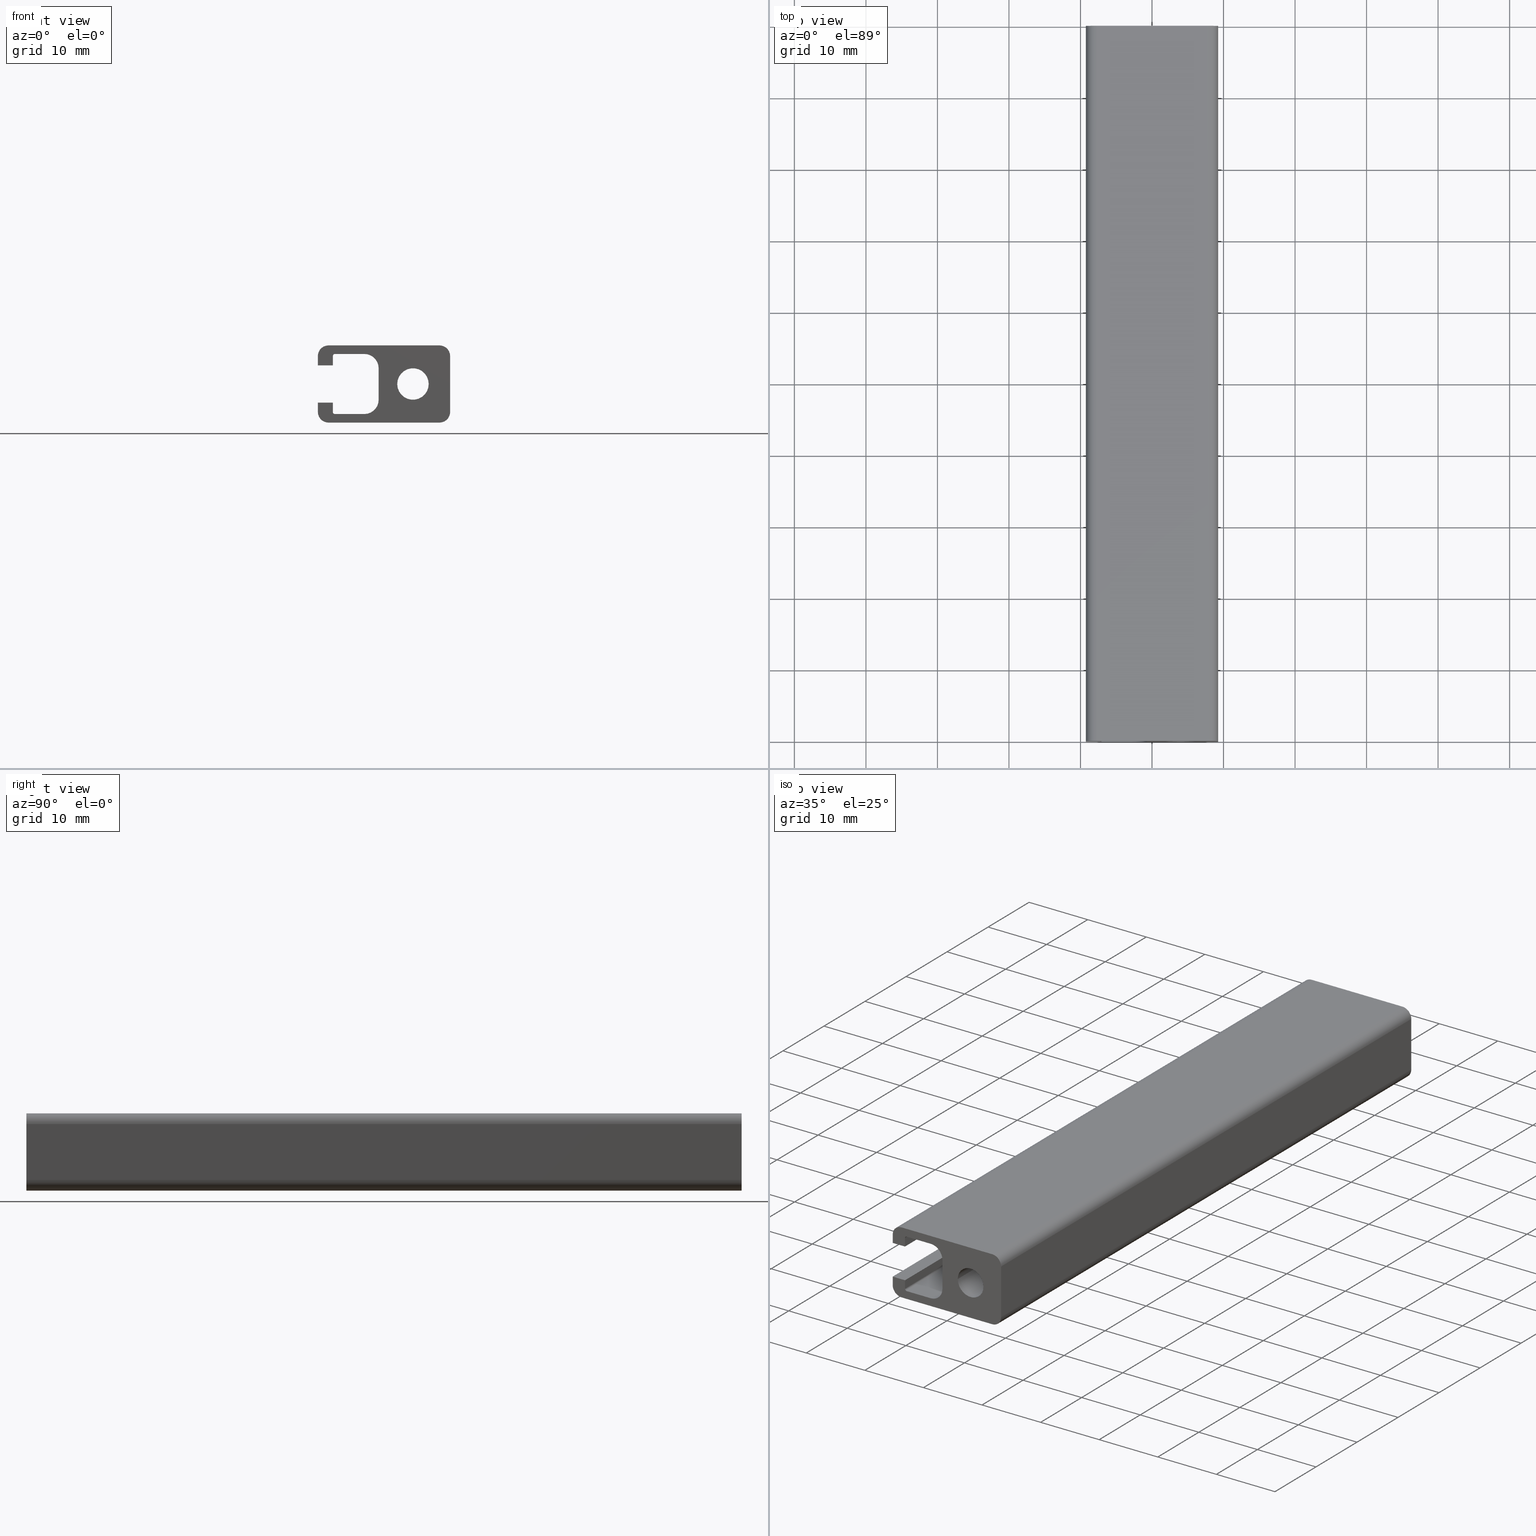
[diagram: canonical four-view strip — front | top / right | iso, engineering-drawing reading convention]
A machine part, canonical four-view strip (front | top / right | iso — engineering-drawing reading convention). The complete STEP part file that produces these views, byte-faithful:
ISO-10303-21;
HEADER;
/* Generated by software containing ST-Developer
 * from STEP Tools, Inc. (www.steptools.com) 
 */

FILE_DESCRIPTION(
/* description */ (''),
/* implementation_level */ '2;1');

FILE_NAME(
/* name */ 
'Q:\\Catalogo\\1_Profili Dierre\\Per Download Web\\Serie 45\\BPRDD0000
487.stp',
/* time_stamp */ '2017-07-13T12:25:35+02:00',
/* author */ ('fzagni'),
/* organization */ (''),
/* preprocessor_version */ 'ST-DEVELOPER v16.1',
/* originating_system */ 'Autodesk Inventor 2016',
/* authorisation */ '');

FILE_SCHEMA (('AUTOMOTIVE_DESIGN { 1 0 10303 214 3 1 1 }'));
ENDSEC;

DATA;
#10=MECHANICAL_DESIGN_GEOMETRIC_PRESENTATION_REPRESENTATION('',(#13),#749);
#11=SHAPE_REPRESENTATION_RELATIONSHIP('SRR','None',#758,#12);
#12=ADVANCED_BREP_SHAPE_REPRESENTATION('',(#14),#748);
#13=STYLED_ITEM('',(#767),#14);
#14=MANIFOLD_SOLID_BREP('Solido1',#447);
#15=LINE('',#627,#59);
#16=LINE('',#629,#60);
#17=LINE('',#631,#61);
#18=LINE('',#632,#62);
#19=LINE('',#638,#63);
#20=LINE('',#641,#64);
#21=LINE('',#643,#65);
#22=LINE('',#644,#66);
#23=LINE('',#650,#67);
#24=LINE('',#653,#68);
#25=LINE('',#655,#69);
#26=LINE('',#656,#70);
#27=LINE('',#662,#71);
#28=LINE('',#665,#72);
#29=LINE('',#667,#73);
#30=LINE('',#668,#74);
#31=LINE('',#671,#75);
#32=LINE('',#673,#76);
#33=LINE('',#674,#77);
#34=LINE('',#677,#78);
#35=LINE('',#679,#79);
#36=LINE('',#680,#80);
#37=LINE('',#686,#81);
#38=LINE('',#689,#82);
#39=LINE('',#691,#83);
#40=LINE('',#692,#84);
#41=LINE('',#698,#85);
#42=LINE('',#701,#86);
#43=LINE('',#703,#87);
#44=LINE('',#704,#88);
#45=LINE('',#710,#89);
#46=LINE('',#713,#90);
#47=LINE('',#715,#91);
#48=LINE('',#716,#92);
#49=LINE('',#722,#93);
#50=LINE('',#725,#94);
#51=LINE('',#727,#95);
#52=LINE('',#728,#96);
#53=LINE('',#731,#97);
#54=LINE('',#733,#98);
#55=LINE('',#734,#99);
#56=LINE('',#737,#100);
#57=LINE('',#739,#101);
#58=LINE('',#740,#102);
#59=VECTOR('',#500,4.09999999999968);
#60=VECTOR('',#501,100.);
#61=VECTOR('',#502,4.09999999999968);
#62=VECTOR('',#503,100.);
#63=VECTOR('',#510,100.);
#64=VECTOR('',#513,4.40000000000111);
#65=VECTOR('',#514,4.40000000000111);
#66=VECTOR('',#515,100.);
#67=VECTOR('',#522,100.);
#68=VECTOR('',#525,4.09999999999968);
#69=VECTOR('',#526,4.09999999999968);
#70=VECTOR('',#527,100.);
#71=VECTOR('',#534,100.);
#72=VECTOR('',#537,1.29999999999825);
#73=VECTOR('',#538,1.29999999999825);
#74=VECTOR('',#539,100.);
#75=VECTOR('',#542,2.10000000000037);
#76=VECTOR('',#543,2.10000000000037);
#77=VECTOR('',#544,100.);
#78=VECTOR('',#547,1.29999999999824);
#79=VECTOR('',#548,1.29999999999824);
#80=VECTOR('',#549,100.);
#81=VECTOR('',#556,100.);
#82=VECTOR('',#559,15.5000000000005);
#83=VECTOR('',#560,15.5000000000005);
#84=VECTOR('',#561,100.);
#85=VECTOR('',#568,100.);
#86=VECTOR('',#571,7.79999999999745);
#87=VECTOR('',#572,7.79999999999745);
#88=VECTOR('',#573,100.);
#89=VECTOR('',#580,100.);
#90=VECTOR('',#583,15.5000000000004);
#91=VECTOR('',#584,15.5000000000004);
#92=VECTOR('',#585,100.);
#93=VECTOR('',#592,100.);
#94=VECTOR('',#595,1.29999999999882);
#95=VECTOR('',#596,1.29999999999882);
#96=VECTOR('',#597,100.);
#97=VECTOR('',#600,2.10000000000038);
#98=VECTOR('',#601,2.10000000000038);
#99=VECTOR('',#602,100.);
#100=VECTOR('',#605,1.29999999999882);
#101=VECTOR('',#606,1.29999999999882);
#102=VECTOR('',#607,100.);
#103=PLANE('',#452);
#104=PLANE('',#456);
#105=PLANE('',#460);
#106=PLANE('',#464);
#107=PLANE('',#465);
#108=PLANE('',#466);
#109=PLANE('',#470);
#110=PLANE('',#474);
#111=PLANE('',#478);
#112=PLANE('',#482);
#113=PLANE('',#483);
#114=PLANE('',#484);
#115=PLANE('',#488);
#116=PLANE('',#489);
#117=FACE_BOUND('',#144,.T.);
#118=FACE_BOUND('',#166,.T.);
#119=FACE_BOUND('',#168,.T.);
#120=FACE_OUTER_BOUND('',#143,.T.);
#121=FACE_OUTER_BOUND('',#145,.T.);
#122=FACE_OUTER_BOUND('',#146,.T.);
#123=FACE_OUTER_BOUND('',#147,.T.);
#124=FACE_OUTER_BOUND('',#148,.T.);
#125=FACE_OUTER_BOUND('',#149,.T.);
#126=FACE_OUTER_BOUND('',#150,.T.);
#127=FACE_OUTER_BOUND('',#151,.T.);
#128=FACE_OUTER_BOUND('',#152,.T.);
#129=FACE_OUTER_BOUND('',#153,.T.);
#130=FACE_OUTER_BOUND('',#154,.T.);
#131=FACE_OUTER_BOUND('',#155,.T.);
#132=FACE_OUTER_BOUND('',#156,.T.);
#133=FACE_OUTER_BOUND('',#157,.T.);
#134=FACE_OUTER_BOUND('',#158,.T.);
#135=FACE_OUTER_BOUND('',#159,.T.);
#136=FACE_OUTER_BOUND('',#160,.T.);
#137=FACE_OUTER_BOUND('',#161,.T.);
#138=FACE_OUTER_BOUND('',#162,.T.);
#139=FACE_OUTER_BOUND('',#163,.T.);
#140=FACE_OUTER_BOUND('',#164,.T.);
#141=FACE_OUTER_BOUND('',#165,.T.);
#142=FACE_OUTER_BOUND('',#167,.T.);
#143=EDGE_LOOP('',(#291));
#144=EDGE_LOOP('',(#292));
#145=EDGE_LOOP('',(#293,#294,#295,#296));
#146=EDGE_LOOP('',(#297,#298,#299,#300));
#147=EDGE_LOOP('',(#301,#302,#303,#304));
#148=EDGE_LOOP('',(#305,#306,#307,#308));
#149=EDGE_LOOP('',(#309,#310,#311,#312));
#150=EDGE_LOOP('',(#313,#314,#315,#316));
#151=EDGE_LOOP('',(#317,#318,#319,#320));
#152=EDGE_LOOP('',(#321,#322,#323,#324));
#153=EDGE_LOOP('',(#325,#326,#327,#328));
#154=EDGE_LOOP('',(#329,#330,#331,#332));
#155=EDGE_LOOP('',(#333,#334,#335,#336));
#156=EDGE_LOOP('',(#337,#338,#339,#340));
#157=EDGE_LOOP('',(#341,#342,#343,#344));
#158=EDGE_LOOP('',(#345,#346,#347,#348));
#159=EDGE_LOOP('',(#349,#350,#351,#352));
#160=EDGE_LOOP('',(#353,#354,#355,#356));
#161=EDGE_LOOP('',(#357,#358,#359,#360));
#162=EDGE_LOOP('',(#361,#362,#363,#364));
#163=EDGE_LOOP('',(#365,#366,#367,#368));
#164=EDGE_LOOP('',(#369,#370,#371,#372));
#165=EDGE_LOOP('',(#373,#374,#375,#376,#377,#378,#379,#380,#381,#382,#383,
#384,#385,#386,#387,#388,#389,#390,#391,#392));
#166=EDGE_LOOP('',(#393));
#167=EDGE_LOOP('',(#394,#395,#396,#397,#398,#399,#400,#401,#402,#403,#404,
#405,#406,#407,#408,#409,#410,#411,#412,#413));
#168=EDGE_LOOP('',(#414));
#169=CIRCLE('',#450,2.2);
#170=CIRCLE('',#451,2.2);
#171=CIRCLE('',#454,2.00000000000045);
#172=CIRCLE('',#455,2.00000000000045);
#173=CIRCLE('',#458,2.00000000000045);
#174=CIRCLE('',#459,2.00000000000045);
#175=CIRCLE('',#462,0.299999999999727);
#176=CIRCLE('',#463,0.299999999999727);
#177=CIRCLE('',#468,1.49999999999977);
#178=CIRCLE('',#469,1.49999999999977);
#179=CIRCLE('',#472,1.50000000000148);
#180=CIRCLE('',#473,1.50000000000148);
#181=CIRCLE('',#476,1.49999999999974);
#182=CIRCLE('',#477,1.49999999999974);
#183=CIRCLE('',#480,1.50000000000091);
#184=CIRCLE('',#481,1.50000000000091);
#185=CIRCLE('',#486,0.299999999999727);
#186=CIRCLE('',#487,0.299999999999727);
#187=VERTEX_POINT('',#620);
#188=VERTEX_POINT('',#622);
#189=VERTEX_POINT('',#625);
#190=VERTEX_POINT('',#626);
#191=VERTEX_POINT('',#628);
#192=VERTEX_POINT('',#630);
#193=VERTEX_POINT('',#634);
#194=VERTEX_POINT('',#636);
#195=VERTEX_POINT('',#640);
#196=VERTEX_POINT('',#642);
#197=VERTEX_POINT('',#646);
#198=VERTEX_POINT('',#648);
#199=VERTEX_POINT('',#652);
#200=VERTEX_POINT('',#654);
#201=VERTEX_POINT('',#658);
#202=VERTEX_POINT('',#660);
#203=VERTEX_POINT('',#664);
#204=VERTEX_POINT('',#666);
#205=VERTEX_POINT('',#670);
#206=VERTEX_POINT('',#672);
#207=VERTEX_POINT('',#676);
#208=VERTEX_POINT('',#678);
#209=VERTEX_POINT('',#682);
#210=VERTEX_POINT('',#684);
#211=VERTEX_POINT('',#688);
#212=VERTEX_POINT('',#690);
#213=VERTEX_POINT('',#694);
#214=VERTEX_POINT('',#696);
#215=VERTEX_POINT('',#700);
#216=VERTEX_POINT('',#702);
#217=VERTEX_POINT('',#706);
#218=VERTEX_POINT('',#708);
#219=VERTEX_POINT('',#712);
#220=VERTEX_POINT('',#714);
#221=VERTEX_POINT('',#718);
#222=VERTEX_POINT('',#720);
#223=VERTEX_POINT('',#724);
#224=VERTEX_POINT('',#726);
#225=VERTEX_POINT('',#730);
#226=VERTEX_POINT('',#732);
#227=VERTEX_POINT('',#736);
#228=VERTEX_POINT('',#738);
#229=EDGE_CURVE('',#187,#187,#169,.T.);
#230=EDGE_CURVE('',#188,#188,#170,.T.);
#231=EDGE_CURVE('',#189,#190,#15,.T.);
#232=EDGE_CURVE('',#189,#191,#16,.T.);
#233=EDGE_CURVE('',#192,#191,#17,.T.);
#234=EDGE_CURVE('',#190,#192,#18,.T.);
#235=EDGE_CURVE('',#190,#193,#171,.T.);
#236=EDGE_CURVE('',#194,#192,#172,.T.);
#237=EDGE_CURVE('',#193,#194,#19,.T.);
#238=EDGE_CURVE('',#193,#195,#20,.T.);
#239=EDGE_CURVE('',#196,#194,#21,.T.);
#240=EDGE_CURVE('',#195,#196,#22,.T.);
#241=EDGE_CURVE('',#195,#197,#173,.T.);
#242=EDGE_CURVE('',#198,#196,#174,.T.);
#243=EDGE_CURVE('',#197,#198,#23,.T.);
#244=EDGE_CURVE('',#197,#199,#24,.T.);
#245=EDGE_CURVE('',#200,#198,#25,.T.);
#246=EDGE_CURVE('',#199,#200,#26,.T.);
#247=EDGE_CURVE('',#199,#201,#175,.T.);
#248=EDGE_CURVE('',#202,#200,#176,.T.);
#249=EDGE_CURVE('',#201,#202,#27,.T.);
#250=EDGE_CURVE('',#201,#203,#28,.T.);
#251=EDGE_CURVE('',#204,#202,#29,.T.);
#252=EDGE_CURVE('',#203,#204,#30,.T.);
#253=EDGE_CURVE('',#203,#205,#31,.T.);
#254=EDGE_CURVE('',#206,#204,#32,.T.);
#255=EDGE_CURVE('',#205,#206,#33,.T.);
#256=EDGE_CURVE('',#205,#207,#34,.T.);
#257=EDGE_CURVE('',#208,#206,#35,.T.);
#258=EDGE_CURVE('',#207,#208,#36,.T.);
#259=EDGE_CURVE('',#207,#209,#177,.T.);
#260=EDGE_CURVE('',#210,#208,#178,.T.);
#261=EDGE_CURVE('',#209,#210,#37,.T.);
#262=EDGE_CURVE('',#209,#211,#38,.T.);
#263=EDGE_CURVE('',#212,#210,#39,.T.);
#264=EDGE_CURVE('',#211,#212,#40,.T.);
#265=EDGE_CURVE('',#211,#213,#179,.T.);
#266=EDGE_CURVE('',#214,#212,#180,.T.);
#267=EDGE_CURVE('',#213,#214,#41,.T.);
#268=EDGE_CURVE('',#213,#215,#42,.T.);
#269=EDGE_CURVE('',#216,#214,#43,.T.);
#270=EDGE_CURVE('',#215,#216,#44,.T.);
#271=EDGE_CURVE('',#215,#217,#181,.T.);
#272=EDGE_CURVE('',#218,#216,#182,.T.);
#273=EDGE_CURVE('',#217,#218,#45,.T.);
#274=EDGE_CURVE('',#217,#219,#46,.T.);
#275=EDGE_CURVE('',#220,#218,#47,.T.);
#276=EDGE_CURVE('',#219,#220,#48,.T.);
#277=EDGE_CURVE('',#219,#221,#183,.T.);
#278=EDGE_CURVE('',#222,#220,#184,.T.);
#279=EDGE_CURVE('',#221,#222,#49,.T.);
#280=EDGE_CURVE('',#221,#223,#50,.T.);
#281=EDGE_CURVE('',#224,#222,#51,.T.);
#282=EDGE_CURVE('',#223,#224,#52,.T.);
#283=EDGE_CURVE('',#223,#225,#53,.T.);
#284=EDGE_CURVE('',#226,#224,#54,.T.);
#285=EDGE_CURVE('',#225,#226,#55,.T.);
#286=EDGE_CURVE('',#225,#227,#56,.T.);
#287=EDGE_CURVE('',#228,#226,#57,.T.);
#288=EDGE_CURVE('',#227,#228,#58,.T.);
#289=EDGE_CURVE('',#227,#189,#185,.T.);
#290=EDGE_CURVE('',#191,#228,#186,.T.);
#291=ORIENTED_EDGE('',*,*,#229,.F.);
#292=ORIENTED_EDGE('',*,*,#230,.F.);
#293=ORIENTED_EDGE('',*,*,#231,.F.);
#294=ORIENTED_EDGE('',*,*,#232,.T.);
#295=ORIENTED_EDGE('',*,*,#233,.F.);
#296=ORIENTED_EDGE('',*,*,#234,.F.);
#297=ORIENTED_EDGE('',*,*,#235,.F.);
#298=ORIENTED_EDGE('',*,*,#234,.T.);
#299=ORIENTED_EDGE('',*,*,#236,.F.);
#300=ORIENTED_EDGE('',*,*,#237,.F.);
#301=ORIENTED_EDGE('',*,*,#238,.F.);
#302=ORIENTED_EDGE('',*,*,#237,.T.);
#303=ORIENTED_EDGE('',*,*,#239,.F.);
#304=ORIENTED_EDGE('',*,*,#240,.F.);
#305=ORIENTED_EDGE('',*,*,#241,.F.);
#306=ORIENTED_EDGE('',*,*,#240,.T.);
#307=ORIENTED_EDGE('',*,*,#242,.F.);
#308=ORIENTED_EDGE('',*,*,#243,.F.);
#309=ORIENTED_EDGE('',*,*,#244,.F.);
#310=ORIENTED_EDGE('',*,*,#243,.T.);
#311=ORIENTED_EDGE('',*,*,#245,.F.);
#312=ORIENTED_EDGE('',*,*,#246,.F.);
#313=ORIENTED_EDGE('',*,*,#247,.F.);
#314=ORIENTED_EDGE('',*,*,#246,.T.);
#315=ORIENTED_EDGE('',*,*,#248,.F.);
#316=ORIENTED_EDGE('',*,*,#249,.F.);
#317=ORIENTED_EDGE('',*,*,#250,.F.);
#318=ORIENTED_EDGE('',*,*,#249,.T.);
#319=ORIENTED_EDGE('',*,*,#251,.F.);
#320=ORIENTED_EDGE('',*,*,#252,.F.);
#321=ORIENTED_EDGE('',*,*,#253,.F.);
#322=ORIENTED_EDGE('',*,*,#252,.T.);
#323=ORIENTED_EDGE('',*,*,#254,.F.);
#324=ORIENTED_EDGE('',*,*,#255,.F.);
#325=ORIENTED_EDGE('',*,*,#256,.F.);
#326=ORIENTED_EDGE('',*,*,#255,.T.);
#327=ORIENTED_EDGE('',*,*,#257,.F.);
#328=ORIENTED_EDGE('',*,*,#258,.F.);
#329=ORIENTED_EDGE('',*,*,#259,.F.);
#330=ORIENTED_EDGE('',*,*,#258,.T.);
#331=ORIENTED_EDGE('',*,*,#260,.F.);
#332=ORIENTED_EDGE('',*,*,#261,.F.);
#333=ORIENTED_EDGE('',*,*,#262,.F.);
#334=ORIENTED_EDGE('',*,*,#261,.T.);
#335=ORIENTED_EDGE('',*,*,#263,.F.);
#336=ORIENTED_EDGE('',*,*,#264,.F.);
#337=ORIENTED_EDGE('',*,*,#265,.F.);
#338=ORIENTED_EDGE('',*,*,#264,.T.);
#339=ORIENTED_EDGE('',*,*,#266,.F.);
#340=ORIENTED_EDGE('',*,*,#267,.F.);
#341=ORIENTED_EDGE('',*,*,#268,.F.);
#342=ORIENTED_EDGE('',*,*,#267,.T.);
#343=ORIENTED_EDGE('',*,*,#269,.F.);
#344=ORIENTED_EDGE('',*,*,#270,.F.);
#345=ORIENTED_EDGE('',*,*,#271,.F.);
#346=ORIENTED_EDGE('',*,*,#270,.T.);
#347=ORIENTED_EDGE('',*,*,#272,.F.);
#348=ORIENTED_EDGE('',*,*,#273,.F.);
#349=ORIENTED_EDGE('',*,*,#274,.F.);
#350=ORIENTED_EDGE('',*,*,#273,.T.);
#351=ORIENTED_EDGE('',*,*,#275,.F.);
#352=ORIENTED_EDGE('',*,*,#276,.F.);
#353=ORIENTED_EDGE('',*,*,#277,.F.);
#354=ORIENTED_EDGE('',*,*,#276,.T.);
#355=ORIENTED_EDGE('',*,*,#278,.F.);
#356=ORIENTED_EDGE('',*,*,#279,.F.);
#357=ORIENTED_EDGE('',*,*,#280,.F.);
#358=ORIENTED_EDGE('',*,*,#279,.T.);
#359=ORIENTED_EDGE('',*,*,#281,.F.);
#360=ORIENTED_EDGE('',*,*,#282,.F.);
#361=ORIENTED_EDGE('',*,*,#283,.F.);
#362=ORIENTED_EDGE('',*,*,#282,.T.);
#363=ORIENTED_EDGE('',*,*,#284,.F.);
#364=ORIENTED_EDGE('',*,*,#285,.F.);
#365=ORIENTED_EDGE('',*,*,#286,.F.);
#366=ORIENTED_EDGE('',*,*,#285,.T.);
#367=ORIENTED_EDGE('',*,*,#287,.F.);
#368=ORIENTED_EDGE('',*,*,#288,.F.);
#369=ORIENTED_EDGE('',*,*,#289,.F.);
#370=ORIENTED_EDGE('',*,*,#288,.T.);
#371=ORIENTED_EDGE('',*,*,#290,.F.);
#372=ORIENTED_EDGE('',*,*,#232,.F.);
#373=ORIENTED_EDGE('',*,*,#289,.T.);
#374=ORIENTED_EDGE('',*,*,#231,.T.);
#375=ORIENTED_EDGE('',*,*,#235,.T.);
#376=ORIENTED_EDGE('',*,*,#238,.T.);
#377=ORIENTED_EDGE('',*,*,#241,.T.);
#378=ORIENTED_EDGE('',*,*,#244,.T.);
#379=ORIENTED_EDGE('',*,*,#247,.T.);
#380=ORIENTED_EDGE('',*,*,#250,.T.);
#381=ORIENTED_EDGE('',*,*,#253,.T.);
#382=ORIENTED_EDGE('',*,*,#256,.T.);
#383=ORIENTED_EDGE('',*,*,#259,.T.);
#384=ORIENTED_EDGE('',*,*,#262,.T.);
#385=ORIENTED_EDGE('',*,*,#265,.T.);
#386=ORIENTED_EDGE('',*,*,#268,.T.);
#387=ORIENTED_EDGE('',*,*,#271,.T.);
#388=ORIENTED_EDGE('',*,*,#274,.T.);
#389=ORIENTED_EDGE('',*,*,#277,.T.);
#390=ORIENTED_EDGE('',*,*,#280,.T.);
#391=ORIENTED_EDGE('',*,*,#283,.T.);
#392=ORIENTED_EDGE('',*,*,#286,.T.);
#393=ORIENTED_EDGE('',*,*,#230,.T.);
#394=ORIENTED_EDGE('',*,*,#290,.T.);
#395=ORIENTED_EDGE('',*,*,#287,.T.);
#396=ORIENTED_EDGE('',*,*,#284,.T.);
#397=ORIENTED_EDGE('',*,*,#281,.T.);
#398=ORIENTED_EDGE('',*,*,#278,.T.);
#399=ORIENTED_EDGE('',*,*,#275,.T.);
#400=ORIENTED_EDGE('',*,*,#272,.T.);
#401=ORIENTED_EDGE('',*,*,#269,.T.);
#402=ORIENTED_EDGE('',*,*,#266,.T.);
#403=ORIENTED_EDGE('',*,*,#263,.T.);
#404=ORIENTED_EDGE('',*,*,#260,.T.);
#405=ORIENTED_EDGE('',*,*,#257,.T.);
#406=ORIENTED_EDGE('',*,*,#254,.T.);
#407=ORIENTED_EDGE('',*,*,#251,.T.);
#408=ORIENTED_EDGE('',*,*,#248,.T.);
#409=ORIENTED_EDGE('',*,*,#245,.T.);
#410=ORIENTED_EDGE('',*,*,#242,.T.);
#411=ORIENTED_EDGE('',*,*,#239,.T.);
#412=ORIENTED_EDGE('',*,*,#236,.T.);
#413=ORIENTED_EDGE('',*,*,#233,.T.);
#414=ORIENTED_EDGE('',*,*,#229,.T.);
#415=CYLINDRICAL_SURFACE('',#449,2.2);
#416=CYLINDRICAL_SURFACE('',#453,2.00000000000045);
#417=CYLINDRICAL_SURFACE('',#457,2.00000000000045);
#418=CYLINDRICAL_SURFACE('',#461,0.299999999999727);
#419=CYLINDRICAL_SURFACE('',#467,1.49999999999977);
#420=CYLINDRICAL_SURFACE('',#471,1.50000000000148);
#421=CYLINDRICAL_SURFACE('',#475,1.49999999999974);
#422=CYLINDRICAL_SURFACE('',#479,1.50000000000091);
#423=CYLINDRICAL_SURFACE('',#485,0.299999999999727);
#424=ADVANCED_FACE('',(#120,#117),#415,.F.);
#425=ADVANCED_FACE('',(#121),#103,.T.);
#426=ADVANCED_FACE('',(#122),#416,.F.);
#427=ADVANCED_FACE('',(#123),#104,.T.);
#428=ADVANCED_FACE('',(#124),#417,.F.);
#429=ADVANCED_FACE('',(#125),#105,.T.);
#430=ADVANCED_FACE('',(#126),#418,.F.);
#431=ADVANCED_FACE('',(#127),#106,.T.);
#432=ADVANCED_FACE('',(#128),#107,.T.);
#433=ADVANCED_FACE('',(#129),#108,.T.);
#434=ADVANCED_FACE('',(#130),#419,.T.);
#435=ADVANCED_FACE('',(#131),#109,.T.);
#436=ADVANCED_FACE('',(#132),#420,.T.);
#437=ADVANCED_FACE('',(#133),#110,.T.);
#438=ADVANCED_FACE('',(#134),#421,.T.);
#439=ADVANCED_FACE('',(#135),#111,.T.);
#440=ADVANCED_FACE('',(#136),#422,.T.);
#441=ADVANCED_FACE('',(#137),#112,.T.);
#442=ADVANCED_FACE('',(#138),#113,.T.);
#443=ADVANCED_FACE('',(#139),#114,.T.);
#444=ADVANCED_FACE('',(#140),#423,.F.);
#445=ADVANCED_FACE('',(#141,#118),#115,.F.);
#446=ADVANCED_FACE('',(#142,#119),#116,.T.);
#447=CLOSED_SHELL('',(#424,#425,#426,#427,#428,#429,#430,#431,#432,#433,
#434,#435,#436,#437,#438,#439,#440,#441,#442,#443,#444,#445,#446));
#448=AXIS2_PLACEMENT_3D('placement',#618,#490,#491);
#449=AXIS2_PLACEMENT_3D('',#619,#492,#493);
#450=AXIS2_PLACEMENT_3D('',#621,#494,#495);
#451=AXIS2_PLACEMENT_3D('',#623,#496,#497);
#452=AXIS2_PLACEMENT_3D('',#624,#498,#499);
#453=AXIS2_PLACEMENT_3D('',#633,#504,#505);
#454=AXIS2_PLACEMENT_3D('',#635,#506,#507);
#455=AXIS2_PLACEMENT_3D('',#637,#508,#509);
#456=AXIS2_PLACEMENT_3D('',#639,#511,#512);
#457=AXIS2_PLACEMENT_3D('',#645,#516,#517);
#458=AXIS2_PLACEMENT_3D('',#647,#518,#519);
#459=AXIS2_PLACEMENT_3D('',#649,#520,#521);
#460=AXIS2_PLACEMENT_3D('',#651,#523,#524);
#461=AXIS2_PLACEMENT_3D('',#657,#528,#529);
#462=AXIS2_PLACEMENT_3D('',#659,#530,#531);
#463=AXIS2_PLACEMENT_3D('',#661,#532,#533);
#464=AXIS2_PLACEMENT_3D('',#663,#535,#536);
#465=AXIS2_PLACEMENT_3D('',#669,#540,#541);
#466=AXIS2_PLACEMENT_3D('',#675,#545,#546);
#467=AXIS2_PLACEMENT_3D('',#681,#550,#551);
#468=AXIS2_PLACEMENT_3D('',#683,#552,#553);
#469=AXIS2_PLACEMENT_3D('',#685,#554,#555);
#470=AXIS2_PLACEMENT_3D('',#687,#557,#558);
#471=AXIS2_PLACEMENT_3D('',#693,#562,#563);
#472=AXIS2_PLACEMENT_3D('',#695,#564,#565);
#473=AXIS2_PLACEMENT_3D('',#697,#566,#567);
#474=AXIS2_PLACEMENT_3D('',#699,#569,#570);
#475=AXIS2_PLACEMENT_3D('',#705,#574,#575);
#476=AXIS2_PLACEMENT_3D('',#707,#576,#577);
#477=AXIS2_PLACEMENT_3D('',#709,#578,#579);
#478=AXIS2_PLACEMENT_3D('',#711,#581,#582);
#479=AXIS2_PLACEMENT_3D('',#717,#586,#587);
#480=AXIS2_PLACEMENT_3D('',#719,#588,#589);
#481=AXIS2_PLACEMENT_3D('',#721,#590,#591);
#482=AXIS2_PLACEMENT_3D('',#723,#593,#594);
#483=AXIS2_PLACEMENT_3D('',#729,#598,#599);
#484=AXIS2_PLACEMENT_3D('',#735,#603,#604);
#485=AXIS2_PLACEMENT_3D('',#741,#608,#609);
#486=AXIS2_PLACEMENT_3D('',#742,#610,#611);
#487=AXIS2_PLACEMENT_3D('',#743,#612,#613);
#488=AXIS2_PLACEMENT_3D('',#744,#614,#615);
#489=AXIS2_PLACEMENT_3D('',#745,#616,#617);
#490=DIRECTION('axis',(0.,0.,1.));
#491=DIRECTION('refdir',(1.,0.,0.));
#492=DIRECTION('center_axis',(0.,1.,0.));
#493=DIRECTION('ref_axis',(1.,0.,0.));
#494=DIRECTION('center_axis',(0.,-1.,0.));
#495=DIRECTION('ref_axis',(1.,0.,0.));
#496=DIRECTION('center_axis',(0.,1.,0.));
#497=DIRECTION('ref_axis',(1.,0.,0.));
#498=DIRECTION('center_axis',(5.54569940105487E-13,0.,-1.));
#499=DIRECTION('ref_axis',(-1.,0.,-5.54578605260758E-13));
#500=DIRECTION('',(1.,0.,5.54569940105487E-13));
#501=DIRECTION('',(0.,1.,0.));
#502=DIRECTION('',(-1.,0.,-5.54569940105487E-13));
#503=DIRECTION('',(0.,1.,0.));
#504=DIRECTION('center_axis',(0.,1.,0.));
#505=DIRECTION('ref_axis',(0.,0.,1.));
#506=DIRECTION('center_axis',(0.,1.,0.));
#507=DIRECTION('ref_axis',(0.,0.,1.));
#508=DIRECTION('center_axis',(0.,-1.,0.));
#509=DIRECTION('ref_axis',(0.,0.,1.));
#510=DIRECTION('',(0.,1.,0.));
#511=DIRECTION('center_axis',(-1.,0.,1.00929365874989E-15));
#512=DIRECTION('ref_axis',(1.01030295240889E-15,0.,1.));
#513=DIRECTION('',(-1.00929365874989E-15,0.,-1.));
#514=DIRECTION('',(1.00929365874989E-15,0.,1.));
#515=DIRECTION('',(0.,1.,0.));
#516=DIRECTION('center_axis',(0.,1.,0.));
#517=DIRECTION('ref_axis',(1.,0.,0.));
#518=DIRECTION('center_axis',(0.,1.,0.));
#519=DIRECTION('ref_axis',(1.,0.,0.));
#520=DIRECTION('center_axis',(0.,-1.,0.));
#521=DIRECTION('ref_axis',(1.,0.,0.));
#522=DIRECTION('',(0.,1.,0.));
#523=DIRECTION('center_axis',(1.38642485026372E-13,0.,1.));
#524=DIRECTION('ref_axis',(1.,0.,-1.3864465131519E-13));
#525=DIRECTION('',(-1.,0.,1.38642485026372E-13));
#526=DIRECTION('',(1.,0.,-1.38642485026372E-13));
#527=DIRECTION('',(0.,1.,0.));
#528=DIRECTION('center_axis',(0.,1.,0.));
#529=DIRECTION('ref_axis',(0.,0.,-1.));
#530=DIRECTION('center_axis',(0.,1.,0.));
#531=DIRECTION('ref_axis',(0.,0.,-1.));
#532=DIRECTION('center_axis',(0.,-1.,0.));
#533=DIRECTION('ref_axis',(0.,0.,-1.));
#534=DIRECTION('',(0.,1.,0.));
#535=DIRECTION('center_axis',(1.,0.,-3.41607084500508E-15));
#536=DIRECTION('ref_axis',(-3.37507799486048E-15,0.,-1.));
#537=DIRECTION('',(3.41607084500508E-15,0.,1.));
#538=DIRECTION('',(-3.41607084500508E-15,0.,-1.));
#539=DIRECTION('',(0.,1.,0.));
#540=DIRECTION('center_axis',(-4.22942104619033E-15,0.,1.));
#541=DIRECTION('ref_axis',(1.,0.,4.21884749357559E-15));
#542=DIRECTION('',(-1.,0.,-4.22942104619033E-15));
#543=DIRECTION('',(1.,0.,4.22942104619033E-15));
#544=DIRECTION('',(0.,1.,0.));
#545=DIRECTION('center_axis',(-1.,0.,-6.83214169001023E-15));
#546=DIRECTION('ref_axis',(-6.75015598972095E-15,0.,1.));
#547=DIRECTION('',(6.83214169001023E-15,0.,-1.));
#548=DIRECTION('',(-6.83214169001023E-15,0.,1.));
#549=DIRECTION('',(0.,1.,0.));
#550=DIRECTION('center_axis',(0.,1.,0.));
#551=DIRECTION('ref_axis',(-5.92118946466844E-15,0.,1.));
#552=DIRECTION('center_axis',(0.,-1.,0.));
#553=DIRECTION('ref_axis',(-5.92118946466844E-15,0.,1.));
#554=DIRECTION('center_axis',(0.,1.,0.));
#555=DIRECTION('ref_axis',(-5.92118946466844E-15,0.,1.));
#556=DIRECTION('',(0.,1.,0.));
#557=DIRECTION('center_axis',(-1.10735793294867E-13,0.,-1.));
#558=DIRECTION('ref_axis',(-1.,0.,1.10755848936606E-13));
#559=DIRECTION('',(1.,0.,-1.10735793294867E-13));
#560=DIRECTION('',(-1.,0.,1.10735793294867E-13));
#561=DIRECTION('',(0.,1.,0.));
#562=DIRECTION('center_axis',(0.,1.,0.));
#563=DIRECTION('ref_axis',(-1.,0.,-2.96059473233082E-15));
#564=DIRECTION('center_axis',(0.,-1.,0.));
#565=DIRECTION('ref_axis',(-1.,0.,-2.96059473233082E-15));
#566=DIRECTION('center_axis',(0.,1.,0.));
#567=DIRECTION('ref_axis',(-1.,0.,-2.96059473233082E-15));
#568=DIRECTION('',(0.,1.,0.));
#569=DIRECTION('center_axis',(1.,0.,2.24321985488438E-13));
#570=DIRECTION('ref_axis',(2.24353868816252E-13,0.,-1.));
#571=DIRECTION('',(-2.24321985488438E-13,0.,1.));
#572=DIRECTION('',(2.24321985488438E-13,0.,-1.));
#573=DIRECTION('',(0.,1.,0.));
#574=DIRECTION('center_axis',(0.,1.,0.));
#575=DIRECTION('ref_axis',(-4.44089209850139E-15,0.,-1.));
#576=DIRECTION('center_axis',(0.,-1.,0.));
#577=DIRECTION('ref_axis',(-4.44089209850139E-15,0.,-1.));
#578=DIRECTION('center_axis',(0.,1.,0.));
#579=DIRECTION('ref_axis',(-4.44089209850139E-15,0.,-1.));
#580=DIRECTION('',(0.,1.,0.));
#581=DIRECTION('center_axis',(7.56384202583311E-14,0.,1.));
#582=DIRECTION('ref_axis',(1.,0.,-7.56728013584507E-14));
#583=DIRECTION('',(-1.,0.,7.56384202583311E-14));
#584=DIRECTION('',(1.,0.,-7.56384202583311E-14));
#585=DIRECTION('',(0.,1.,0.));
#586=DIRECTION('center_axis',(0.,1.,0.));
#587=DIRECTION('ref_axis',(1.,0.,-5.92118946466836E-15));
#588=DIRECTION('center_axis',(0.,-1.,0.));
#589=DIRECTION('ref_axis',(1.,0.,-5.92118946466836E-15));
#590=DIRECTION('center_axis',(0.,1.,0.));
#591=DIRECTION('ref_axis',(1.,0.,-5.92118946466836E-15));
#592=DIRECTION('',(0.,1.,0.));
#593=DIRECTION('center_axis',(-1.,0.,0.));
#594=DIRECTION('ref_axis',(0.,0.,1.));
#595=DIRECTION('',(0.,0.,-1.));
#596=DIRECTION('',(0.,0.,1.));
#597=DIRECTION('',(0.,1.,0.));
#598=DIRECTION('center_axis',(-4.22942104619031E-15,0.,-1.));
#599=DIRECTION('ref_axis',(-1.,0.,4.21884749357559E-15));
#600=DIRECTION('',(1.,0.,-4.22942104619031E-15));
#601=DIRECTION('',(-1.,0.,4.22942104619031E-15));
#602=DIRECTION('',(0.,1.,0.));
#603=DIRECTION('center_axis',(1.,0.,6.83214169000715E-15));
#604=DIRECTION('ref_axis',(6.83897383169096E-15,0.,-1.));
#605=DIRECTION('',(-6.83214169000715E-15,0.,1.));
#606=DIRECTION('',(6.83214169000715E-15,0.,-1.));
#607=DIRECTION('',(0.,1.,0.));
#608=DIRECTION('center_axis',(0.,1.,0.));
#609=DIRECTION('ref_axis',(-1.,0.,0.));
#610=DIRECTION('center_axis',(0.,1.,0.));
#611=DIRECTION('ref_axis',(-1.,0.,0.));
#612=DIRECTION('center_axis',(0.,-1.,0.));
#613=DIRECTION('ref_axis',(-1.,0.,0.));
#614=DIRECTION('center_axis',(0.,1.,0.));
#615=DIRECTION('ref_axis',(0.,0.,1.));
#616=DIRECTION('center_axis',(0.,1.,0.));
#617=DIRECTION('ref_axis',(0.,0.,1.));
#618=CARTESIAN_POINT('',(0.,0.,0.));
#619=CARTESIAN_POINT('Origin',(4.04999999999931,0.,5.6843418860808E-13));
#620=CARTESIAN_POINT('',(1.84999999999931,100.,5.68703610903893E-13));
#621=CARTESIAN_POINT('Origin',(4.04999999999931,100.,5.6843418860808E-13));
#622=CARTESIAN_POINT('',(1.84999999999931,0.,5.68703610903893E-13));
#623=CARTESIAN_POINT('Origin',(4.04999999999931,0.,5.6843418860808E-13));
#624=CARTESIAN_POINT('Origin',(-2.75000000000022,0.,4.20000000000073));
#625=CARTESIAN_POINT('',(-6.8499999999999,0.,4.19999999999845));
#626=CARTESIAN_POINT('',(-2.75000000000022,0.,4.20000000000073));
#627=CARTESIAN_POINT('',(-6.8499999999999,0.,4.19999999999845));
#628=CARTESIAN_POINT('',(-6.8499999999999,100.,4.19999999999845));
#629=CARTESIAN_POINT('',(-6.8499999999999,0.,4.19999999999845));
#630=CARTESIAN_POINT('',(-2.75000000000022,100.,4.20000000000073));
#631=CARTESIAN_POINT('',(-6.8499999999999,100.,4.19999999999845));
#632=CARTESIAN_POINT('',(-2.75000000000022,0.,4.20000000000073));
#633=CARTESIAN_POINT('Origin',(-2.75000000000022,0.,2.20000000000028));
#634=CARTESIAN_POINT('',(-0.749999999999762,0.,2.20000000000027));
#635=CARTESIAN_POINT('Origin',(-2.75000000000022,0.,2.20000000000028));
#636=CARTESIAN_POINT('',(-0.749999999999762,100.,2.20000000000027));
#637=CARTESIAN_POINT('Origin',(-2.75000000000022,100.,2.20000000000028));
#638=CARTESIAN_POINT('',(-0.749999999999762,0.,2.20000000000027));
#639=CARTESIAN_POINT('Origin',(-0.749999999999766,0.,-2.20000000000084));
#640=CARTESIAN_POINT('',(-0.749999999999766,0.,-2.20000000000084));
#641=CARTESIAN_POINT('',(-0.749999999999762,0.,2.20000000000027));
#642=CARTESIAN_POINT('',(-0.749999999999766,100.,-2.20000000000084));
#643=CARTESIAN_POINT('',(-0.749999999999762,100.,2.20000000000027));
#644=CARTESIAN_POINT('',(-0.749999999999766,0.,-2.20000000000084));
#645=CARTESIAN_POINT('Origin',(-2.75000000000022,0.,-2.20000000000084));
#646=CARTESIAN_POINT('',(-2.75000000000022,0.,-4.2000000000013));
#647=CARTESIAN_POINT('Origin',(-2.75000000000022,0.,-2.20000000000084));
#648=CARTESIAN_POINT('',(-2.75000000000022,100.,-4.2000000000013));
#649=CARTESIAN_POINT('Origin',(-2.75000000000022,100.,-2.20000000000084));
#650=CARTESIAN_POINT('',(-2.75000000000022,0.,-4.2000000000013));
#651=CARTESIAN_POINT('Origin',(-6.8499999999999,0.,-4.20000000000073));
#652=CARTESIAN_POINT('',(-6.8499999999999,0.,-4.20000000000073));
#653=CARTESIAN_POINT('',(-2.75000000000022,0.,-4.2000000000013));
#654=CARTESIAN_POINT('',(-6.8499999999999,100.,-4.20000000000073));
#655=CARTESIAN_POINT('',(-2.75000000000022,100.,-4.2000000000013));
#656=CARTESIAN_POINT('',(-6.8499999999999,0.,-4.20000000000073));
#657=CARTESIAN_POINT('Origin',(-6.8499999999999,0.,-3.89999999999873));
#658=CARTESIAN_POINT('',(-7.14999999999963,0.,-3.89999999999873));
#659=CARTESIAN_POINT('Origin',(-6.8499999999999,0.,-3.89999999999873));
#660=CARTESIAN_POINT('',(-7.14999999999963,100.,-3.89999999999873));
#661=CARTESIAN_POINT('Origin',(-6.8499999999999,100.,-3.89999999999873));
#662=CARTESIAN_POINT('',(-7.14999999999963,0.,-3.89999999999873));
#663=CARTESIAN_POINT('Origin',(-7.14999999999963,0.,-2.60000000000048));
#664=CARTESIAN_POINT('',(-7.14999999999963,0.,-2.60000000000048));
#665=CARTESIAN_POINT('',(-7.14999999999963,0.,-3.89999999999873));
#666=CARTESIAN_POINT('',(-7.14999999999963,100.,-2.60000000000048));
#667=CARTESIAN_POINT('',(-7.14999999999963,100.,-3.89999999999873));
#668=CARTESIAN_POINT('',(-7.14999999999963,0.,-2.60000000000048));
#669=CARTESIAN_POINT('Origin',(-9.25,0.,-2.60000000000049));
#670=CARTESIAN_POINT('',(-9.25,0.,-2.60000000000049));
#671=CARTESIAN_POINT('',(-7.14999999999963,0.,-2.60000000000048));
#672=CARTESIAN_POINT('',(-9.25,100.,-2.60000000000049));
#673=CARTESIAN_POINT('',(-7.14999999999963,100.,-2.60000000000048));
#674=CARTESIAN_POINT('',(-9.25,0.,-2.60000000000049));
#675=CARTESIAN_POINT('Origin',(-9.24999999999999,0.,-3.89999999999873));
#676=CARTESIAN_POINT('',(-9.24999999999999,0.,-3.89999999999873));
#677=CARTESIAN_POINT('',(-9.25,0.,-2.60000000000049));
#678=CARTESIAN_POINT('',(-9.24999999999999,100.,-3.89999999999873));
#679=CARTESIAN_POINT('',(-9.25,100.,-2.60000000000049));
#680=CARTESIAN_POINT('',(-9.24999999999999,0.,-3.89999999999873));
#681=CARTESIAN_POINT('Origin',(-7.75000000000022,0.,-3.89999999999873));
#682=CARTESIAN_POINT('',(-7.75000000000021,0.,-5.39999999999849));
#683=CARTESIAN_POINT('Origin',(-7.75000000000022,0.,-3.89999999999873));
#684=CARTESIAN_POINT('',(-7.75000000000021,100.,-5.39999999999849));
#685=CARTESIAN_POINT('Origin',(-7.75000000000022,100.,-3.89999999999873));
#686=CARTESIAN_POINT('',(-7.75000000000021,0.,-5.39999999999849));
#687=CARTESIAN_POINT('Origin',(7.75000000000024,0.,-5.40000000000021));
#688=CARTESIAN_POINT('',(7.75000000000024,0.,-5.40000000000021));
#689=CARTESIAN_POINT('',(-7.75000000000021,0.,-5.39999999999849));
#690=CARTESIAN_POINT('',(7.75000000000024,100.,-5.40000000000021));
#691=CARTESIAN_POINT('',(-7.75000000000021,100.,-5.39999999999849));
#692=CARTESIAN_POINT('',(7.75000000000024,0.,-5.40000000000021));
#693=CARTESIAN_POINT('Origin',(7.75000000000023,0.,-3.89999999999873));
#694=CARTESIAN_POINT('',(9.25000000000171,0.,-3.89999999999872));
#695=CARTESIAN_POINT('Origin',(7.75000000000023,0.,-3.89999999999873));
#696=CARTESIAN_POINT('',(9.25000000000171,100.,-3.89999999999872));
#697=CARTESIAN_POINT('Origin',(7.75000000000023,100.,-3.89999999999873));
#698=CARTESIAN_POINT('',(9.25000000000171,0.,-3.89999999999872));
#699=CARTESIAN_POINT('Origin',(9.24999999999996,0.,3.89999999999873));
#700=CARTESIAN_POINT('',(9.24999999999996,0.,3.89999999999873));
#701=CARTESIAN_POINT('',(9.25000000000171,0.,-3.89999999999872));
#702=CARTESIAN_POINT('',(9.24999999999996,100.,3.89999999999873));
#703=CARTESIAN_POINT('',(9.25000000000171,100.,-3.89999999999872));
#704=CARTESIAN_POINT('',(9.24999999999996,0.,3.89999999999873));
#705=CARTESIAN_POINT('Origin',(7.75000000000022,0.,3.89999999999872));
#706=CARTESIAN_POINT('',(7.75000000000023,0.,5.39999999999846));
#707=CARTESIAN_POINT('Origin',(7.75000000000022,0.,3.89999999999872));
#708=CARTESIAN_POINT('',(7.75000000000023,100.,5.39999999999846));
#709=CARTESIAN_POINT('Origin',(7.75000000000022,100.,3.89999999999872));
#710=CARTESIAN_POINT('',(7.75000000000023,0.,5.39999999999846));
#711=CARTESIAN_POINT('Origin',(-7.75000000000021,0.,5.39999999999964));
#712=CARTESIAN_POINT('',(-7.75000000000021,0.,5.39999999999964));
#713=CARTESIAN_POINT('',(7.75000000000023,0.,5.39999999999846));
#714=CARTESIAN_POINT('',(-7.75000000000021,100.,5.39999999999964));
#715=CARTESIAN_POINT('',(7.75000000000023,100.,5.39999999999846));
#716=CARTESIAN_POINT('',(-7.75000000000021,0.,5.39999999999964));
#717=CARTESIAN_POINT('Origin',(-7.75000000000021,0.,3.89999999999873));
#718=CARTESIAN_POINT('',(-9.25,0.,3.89999999999874));
#719=CARTESIAN_POINT('Origin',(-7.75000000000021,0.,3.89999999999873));
#720=CARTESIAN_POINT('',(-9.25,100.,3.89999999999874));
#721=CARTESIAN_POINT('Origin',(-7.75000000000021,100.,3.89999999999873));
#722=CARTESIAN_POINT('',(-9.25,0.,3.89999999999874));
#723=CARTESIAN_POINT('Origin',(-9.25,0.,2.59999999999991));
#724=CARTESIAN_POINT('',(-9.25,0.,2.59999999999991));
#725=CARTESIAN_POINT('',(-9.25,0.,3.89999999999874));
#726=CARTESIAN_POINT('',(-9.25,100.,2.59999999999991));
#727=CARTESIAN_POINT('',(-9.25,100.,3.89999999999874));
#728=CARTESIAN_POINT('',(-9.25,0.,2.59999999999991));
#729=CARTESIAN_POINT('Origin',(-7.14999999999962,0.,2.5999999999999));
#730=CARTESIAN_POINT('',(-7.14999999999962,0.,2.5999999999999));
#731=CARTESIAN_POINT('',(-9.25,0.,2.59999999999991));
#732=CARTESIAN_POINT('',(-7.14999999999962,100.,2.5999999999999));
#733=CARTESIAN_POINT('',(-9.25,100.,2.59999999999991));
#734=CARTESIAN_POINT('',(-7.14999999999962,0.,2.5999999999999));
#735=CARTESIAN_POINT('Origin',(-7.14999999999963,0.,3.89999999999873));
#736=CARTESIAN_POINT('',(-7.14999999999963,0.,3.89999999999873));
#737=CARTESIAN_POINT('',(-7.14999999999962,0.,2.5999999999999));
#738=CARTESIAN_POINT('',(-7.14999999999963,100.,3.89999999999873));
#739=CARTESIAN_POINT('',(-7.14999999999962,100.,2.5999999999999));
#740=CARTESIAN_POINT('',(-7.14999999999963,0.,3.89999999999873));
#741=CARTESIAN_POINT('Origin',(-6.8499999999999,0.,3.89999999999873));
#742=CARTESIAN_POINT('Origin',(-6.8499999999999,0.,3.89999999999873));
#743=CARTESIAN_POINT('Origin',(-6.8499999999999,100.,3.89999999999873));
#744=CARTESIAN_POINT('Origin',(-0.812222789170337,0.,-2.11269015450213E-13));
#745=CARTESIAN_POINT('Origin',(-0.812222789170337,100.,-2.11269015450213E-13));
#746=UNCERTAINTY_MEASURE_WITH_UNIT(LENGTH_MEASURE(0.01),#750,
'DISTANCE_ACCURACY_VALUE',
'Maximum model space distance between geometric entities at asserted c
onnectivities');
#747=UNCERTAINTY_MEASURE_WITH_UNIT(LENGTH_MEASURE(1.E-6),#750,
'DISTANCE_ACCURACY_VALUE',
'Maximum model space distance between geometric entities at asserted c
onnectivities');
#748=(
GEOMETRIC_REPRESENTATION_CONTEXT(3)
GLOBAL_UNCERTAINTY_ASSIGNED_CONTEXT((#746))
GLOBAL_UNIT_ASSIGNED_CONTEXT((#750,#753,#751))
REPRESENTATION_CONTEXT('','3D')
);
#749=(
GEOMETRIC_REPRESENTATION_CONTEXT(3)
GLOBAL_UNCERTAINTY_ASSIGNED_CONTEXT((#747))
GLOBAL_UNIT_ASSIGNED_CONTEXT((#750,#753,#751))
REPRESENTATION_CONTEXT('','3D')
);
#750=(
LENGTH_UNIT()
NAMED_UNIT(*)
SI_UNIT(.MILLI.,.METRE.)
);
#751=(
NAMED_UNIT(*)
SI_UNIT($,.STERADIAN.)
SOLID_ANGLE_UNIT()
);
#752=DIMENSIONAL_EXPONENTS(0.,0.,0.,0.,0.,0.,0.);
#753=(
CONVERSION_BASED_UNIT('degree',#755)
NAMED_UNIT(#752)
PLANE_ANGLE_UNIT()
);
#754=(
NAMED_UNIT(*)
PLANE_ANGLE_UNIT()
SI_UNIT($,.RADIAN.)
);
#755=PLANE_ANGLE_MEASURE_WITH_UNIT(PLANE_ANGLE_MEASURE(0.01745329252),#754);
#756=SHAPE_DEFINITION_REPRESENTATION(#757,#758);
#757=PRODUCT_DEFINITION_SHAPE('',$,#760);
#758=SHAPE_REPRESENTATION('',(#448),#748);
#759=PRODUCT_DEFINITION_CONTEXT('part definition',#764,'design');
#760=PRODUCT_DEFINITION('Parte5','Parte5',#761,#759);
#761=PRODUCT_DEFINITION_FORMATION('',$,#766);
#762=PRODUCT_RELATED_PRODUCT_CATEGORY('Parte5','Parte5',(#766));
#763=APPLICATION_PROTOCOL_DEFINITION('international standard',
'automotive_design',2009,#764);
#764=APPLICATION_CONTEXT(
'Core Data for Automotive Mechanical Design Process');
#765=PRODUCT_CONTEXT('part definition',#764,'mechanical');
#766=PRODUCT('Parte5','Parte5',$,(#765));
#767=PRESENTATION_STYLE_ASSIGNMENT((#768));
#768=SURFACE_STYLE_USAGE(.BOTH.,#769);
#769=SURFACE_SIDE_STYLE('',(#770));
#770=SURFACE_STYLE_FILL_AREA(#771);
#771=FILL_AREA_STYLE('',(#772));
#772=FILL_AREA_STYLE_COLOUR('',#773);
#773=COLOUR_RGB('',0.956862745098039,0.956862745098039,0.956862745098039);
ENDSEC;
END-ISO-10303-21;
